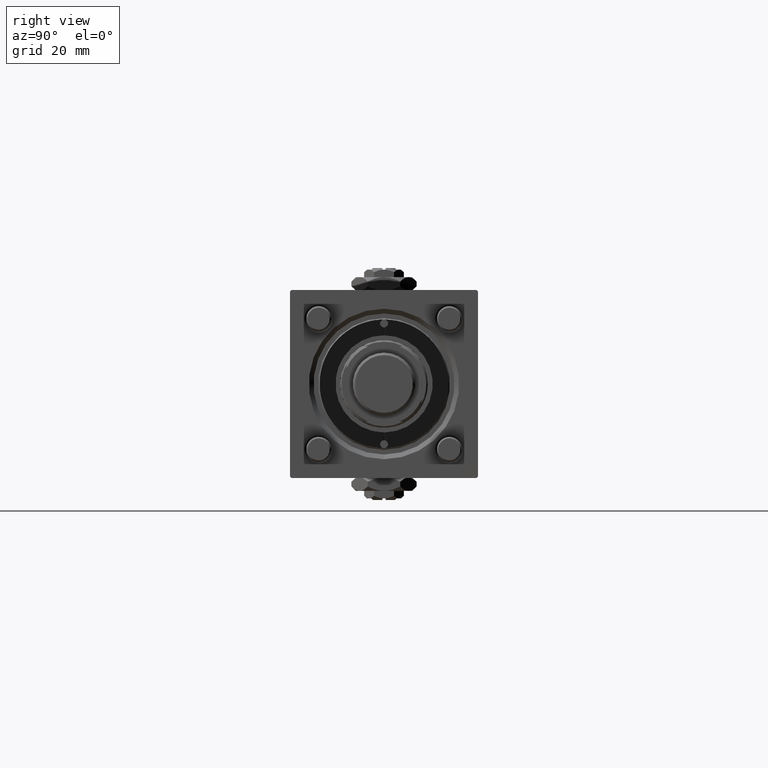
[diagram: clean part render]
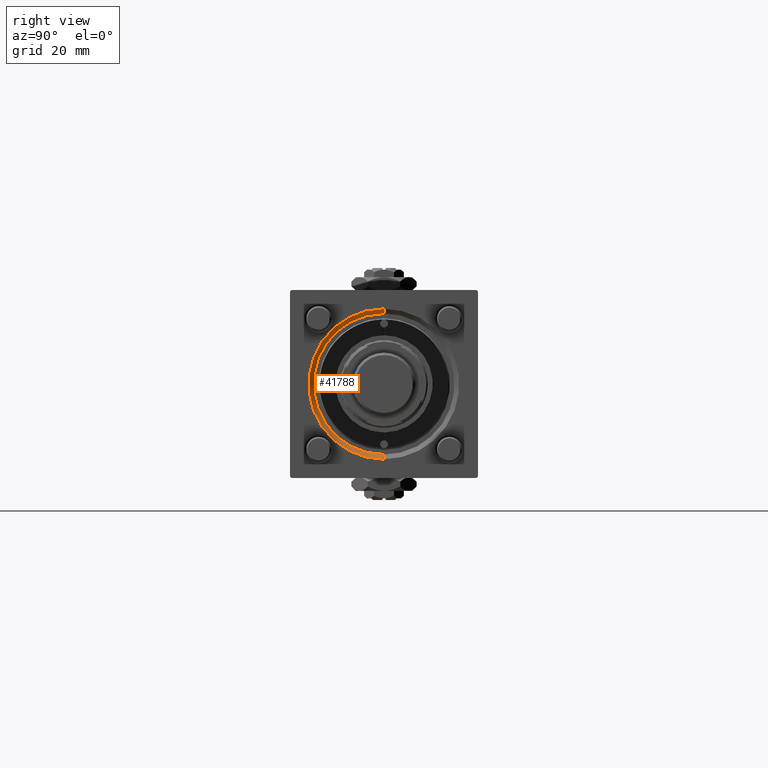
[diagram: same view with one face highlighted and labeled with its STEP entity id]
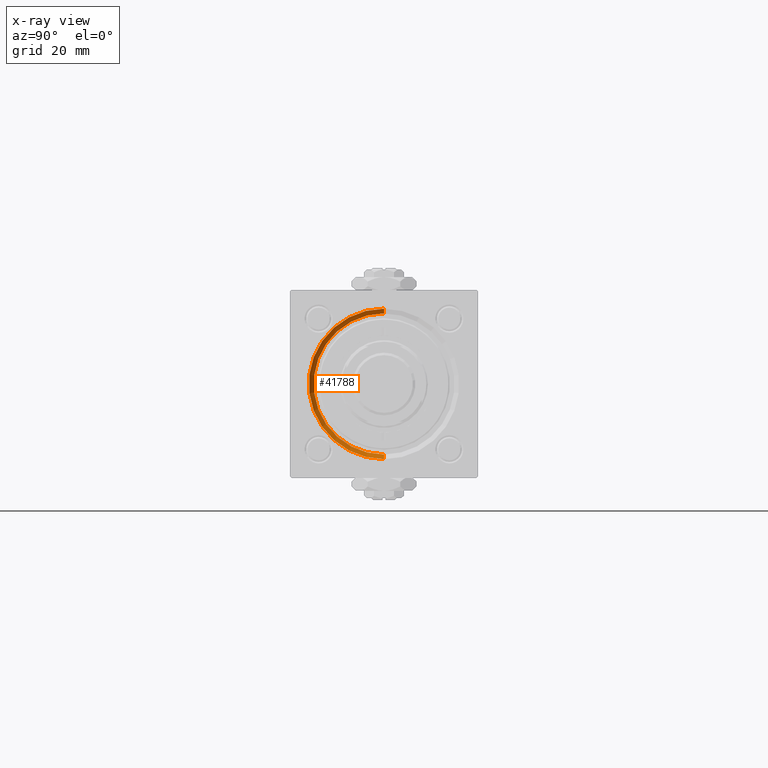
[diagram: x-ray of the same camera — body ghosted, the highlighted face saturated]
A machine part, right view. The second image highlights one B-rep face of the part: STEP entity #41788.
The next image is the same camera in x-ray: the body ghosted, the highlighted face saturated — about 0% of this face is hidden behind the body in this view.
In plain terms, the highlighted conical surface has half-angle 45 deg.
Its self-contained STEP definition (entity closure, byte-faithful):
#2010 = AXIS2_PLACEMENT_3D ( 'NONE', #34426, #7331, #53686 ) ;
#2045 = VECTOR ( 'NONE', #35154, 1000.000000000000000 ) ;
#3519 = CARTESIAN_POINT ( 'NONE',  ( 146.4999999999999432, 0.000000000000000000, 0.000000000000000000 ) ) ;
#4721 = LINE ( 'NONE', #32401, #40388 ) ;
#6856 = ORIENTED_EDGE ( 'NONE', *, *, #15413, .F. ) ;
#7331 = DIRECTION ( 'NONE',  ( -1.000000000000000000, 0.000000000000000000, -0.000000000000000000 ) ) ;
#12194 = ORIENTED_EDGE ( 'NONE', *, *, #16946, .F. ) ;
#12820 = DIRECTION ( 'NONE',  ( 0.000000000000000000, 0.000000000000000000, -1.000000000000000000 ) ) ;
#13140 = DIRECTION ( 'NONE',  ( 0.7071067811865524577, 0.000000000000000000, -0.7071067811865426878 ) ) ;
#13416 = EDGE_CURVE ( 'NONE', #34191, #46974, #30688, .T. ) ;
#15413 = EDGE_CURVE ( 'NONE', #46974, #42108, #4721, .T. ) ;
#15450 = CIRCLE ( 'NONE', #2010, 24.00000000000003908 ) ;
#16798 = LINE ( 'NONE', #35438, #2045 ) ;
#16946 = EDGE_CURVE ( 'NONE', #42108, #56078, #15450, .T. ) ;
#20863 = AXIS2_PLACEMENT_3D ( 'NONE', #3519, #58305, #12820 ) ;
#22424 = EDGE_CURVE ( 'NONE', #34191, #56078, #16798, .T. ) ;
#26791 = CARTESIAN_POINT ( 'NONE',  ( 146.4999999999999432, 0.000000000000000000, -22.50000000000000355 ) ) ;
#29700 = AXIS2_PLACEMENT_3D ( 'NONE', #39406, #44213, #48148 ) ;
#30625 = EDGE_LOOP ( 'NONE', ( #58802, #38937, #12194, #6856 ) ) ;
#30688 = CIRCLE ( 'NONE', #29700, 22.50000000000000355 ) ;
#32401 = CARTESIAN_POINT ( 'NONE',  ( 146.4999999999999432, 0.000000000000000000, -22.50000000000000355 ) ) ;
#34191 = VERTEX_POINT ( 'NONE', #52440 ) ;
#34426 = CARTESIAN_POINT ( 'NONE',  ( 148.0000000000000000, 0.000000000000000000, 0.000000000000000000 ) ) ;
#35154 = DIRECTION ( 'NONE',  ( 0.7071067811865524577, 8.659560562354874926E-17, 0.7071067811865426878 ) ) ;
#35438 = CARTESIAN_POINT ( 'NONE',  ( 146.4999999999999432, 2.755455298081545172E-15, 22.50000000000000355 ) ) ;
#36295 = FACE_OUTER_BOUND ( 'NONE', #30625, .T. ) ;
#38937 = ORIENTED_EDGE ( 'NONE', *, *, #22424, .T. ) ;
#39406 = CARTESIAN_POINT ( 'NONE',  ( 146.4999999999999432, 0.000000000000000000, 0.000000000000000000 ) ) ;
#39574 = CARTESIAN_POINT ( 'NONE',  ( 148.0000000000000000, 0.000000000000000000, -24.00000000000003908 ) ) ;
#40388 = VECTOR ( 'NONE', #13140, 1000.000000000000000 ) ;
#41788 = ADVANCED_FACE ( 'NONE', ( #36295 ), #55443, .F. ) ;
#42108 = VERTEX_POINT ( 'NONE', #39574 ) ;
#43605 = CARTESIAN_POINT ( 'NONE',  ( 148.0000000000000000, 2.939152317953652628E-15, 24.00000000000003908 ) ) ;
#44213 = DIRECTION ( 'NONE',  ( 1.000000000000000000, 0.000000000000000000, 0.000000000000000000 ) ) ;
#46974 = VERTEX_POINT ( 'NONE', #26791 ) ;
#48148 = DIRECTION ( 'NONE',  ( 0.000000000000000000, 0.000000000000000000, 1.000000000000000000 ) ) ;
#52440 = CARTESIAN_POINT ( 'NONE',  ( 146.4999999999999432, 2.755455298081545172E-15, 22.50000000000000355 ) ) ;
#53686 = DIRECTION ( 'NONE',  ( 0.000000000000000000, 0.000000000000000000, 1.000000000000000000 ) ) ;
#55443 = CONICAL_SURFACE ( 'NONE', #20863, 22.50000000000000355, 0.7853981633974415066 ) ;
#56078 = VERTEX_POINT ( 'NONE', #43605 ) ;
#58305 = DIRECTION ( 'NONE',  ( 1.000000000000000000, 0.000000000000000000, 0.000000000000000000 ) ) ;
#58802 = ORIENTED_EDGE ( 'NONE', *, *, #13416, .F. ) ;